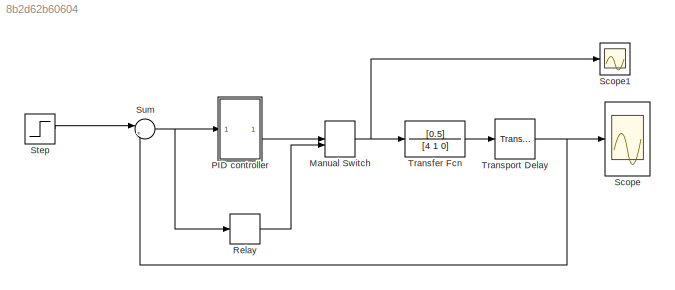
MODEL slx_8b2d62b60604
KIND model
CONFIG AbsTol = auto
CONFIG EnableMultiTasking = off
CONFIG FixedStep = auto
CONFIG MaxStep = auto
CONFIG MinStep = auto
CONFIG RelTol = 1e-3
CONFIG SampleTimeConstraint = Unconstrained
CONFIG SolverName = VariableStepAuto
CONFIG StartTime = 0.0
CONFIG StopTime = 100
BLOCK [ManualSwitch] Manual Switch
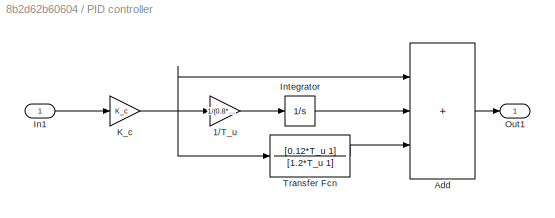
BLOCK [SubSystem] PID controller
BLOCK [Gain] PID controller/1//T_u
  Gain = 1/(0.8*T_u)
BLOCK [Sum] PID controller/Add
  IconShape = rectangular
  Inputs = +++
BLOCK [Inport] PID controller/In1
BLOCK [Integrator] PID controller/Integrator
BLOCK [Gain] PID controller/K_c
  Gain = K_c
BLOCK [Outport] PID controller/Out1
BLOCK [TransferFcn] PID controller/Transfer Fcn
  Denominator = [1.2*T_u 1]
  Numerator = [0.12*T_u 1]
BLOCK [Relay] Relay
  Commented = on
  OffOutputValue = -2
  OffSwitchValue = -1
  OnOutputValue = 2
  OnSwitchValue = 1
BLOCK [Scope] Scope
  Floating = off
  NumInputPorts = 1
  ScopeSpecificationString = Simulink.scopes.TimeScopeBlockCfg('CurrentConfiguration', extmgr.ConfigurationSet(extmgr.Configuration('Core','General UI',true),extmgr.Configuration('Core','Source UI',true),extmgr.Configuration('Sources','WiredSimulink',true),extmgr.Configuration('Visuals','Time Domain',true,'SerializedDisplays',{struct('MinYLimReal','-0.22334','MaxYLimReal','2.01003','YLabelReal','','MinYLimMag','0.00000','MaxY...<+1465ch>
BLOCK [Scope] Scope1
  Floating = off
  NumInputPorts = 1
  ScopeSpecificationString = Simulink.scopes.TimeScopeBlockCfg('CurrentConfiguration', extmgr.ConfigurationSet(extmgr.Configuration('Core','General UI',true),extmgr.Configuration('Core','Source UI',true),extmgr.Configuration('Sources','WiredSimulink',true,'DataLoggingVariableName','ScopeData1'),extmgr.Configuration('Visuals','Time Domain',true,'SerializedDisplays',{struct('MinYLimReal','-0.38663','MaxYLimReal','0.56555','YLab...<+1517ch>
BLOCK [Step] Step
  SampleTime = 0
  Time = 10
BLOCK [Sum] Sum
  Inputs = |+-
BLOCK [TransferFcn] Transfer Fcn
  Denominator = [4 1 0]
  Numerator = [0.5]
BLOCK [TransportDelay] Transport Delay
  DelayTime = 2
NET Manual Switch:1 -> Scope1:1, Transfer Fcn:1
LINE PID controller/1//T_u:1 -> PID controller/Integrator:1
LINE PID controller/Add:1 -> PID controller/Out1:1
LINE PID controller/In1:1 -> PID controller/K_c:1
LINE PID controller/Integrator:1 -> PID controller/Add:2
NET PID controller/K_c:1 -> PID controller/1//T_u:1, PID controller/Add:1, PID controller/Transfer Fcn:1
LINE PID controller/Transfer Fcn:1 -> PID controller/Add:3
LINE PID controller:1 -> Manual Switch:1
LINE Relay:1 -> Manual Switch:2
LINE Step:1 -> Sum:1
NET Sum:1 -> PID controller:1, Relay:1
LINE Transfer Fcn:1 -> Transport Delay:1
NET Transport Delay:1 -> Scope:1, Sum:2
note: NET lines group one-source signal fan-out (src -> all destinations, sorted); 1:1 wires keep LINE
